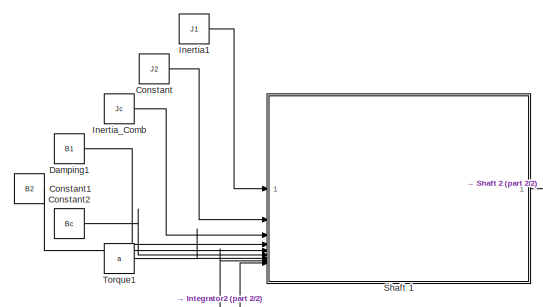
[diagram: root canvas - part 1/2, left side, full height]
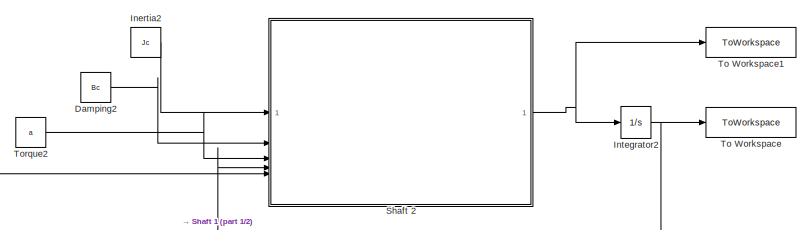
[diagram: root canvas - part 2/2, middle right region]
MODEL slx_19598f20d4ec
KIND model
CONFIG AbsTol = auto
CONFIG EnableMultiTasking = off
CONFIG FixedStep = auto
CONFIG MaxStep = auto
CONFIG MinStep = auto
CONFIG RelTol = 1e-3
CONFIG SampleTimeConstraint = Unconstrained
CONFIG SolverName = VariableStepAuto
CONFIG StartTime = 0.0
CONFIG StopTime = 10.0
BLOCK [Constant] Constant
  Value = J2
BLOCK [Constant] Constant1
  Value = B2
BLOCK [Constant] Constant2
  Value = Bc
BLOCK [Constant] Damping1
  Value = B1
BLOCK [Constant] Damping2
  Value = Bc
BLOCK [Constant] Inertia1
  Value = J1
BLOCK [Constant] Inertia2
  Value = Jc
BLOCK [Constant] Inertia_Comb
  Value = Jc
BLOCK [Integrator] Integrator2
  LimitOutput = on
  UpperSaturationLimit = 1000
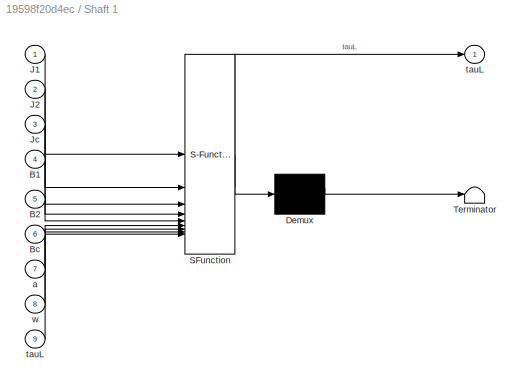
BLOCK [SubSystem] Shaft 1
  ErrorFcn = Stateflow.Translate.translate
  PermitHierarchicalResolution = ExplicitOnly
  SFBlockType = MATLAB Function
  TreatAsAtomicUnit = on
BLOCK [Demux] Shaft 1/ Demux 
  Outputs = 1
BLOCK [S-Function] Shaft 1/ SFunction 
  EnableBusSupport = on
  FunctionName = sf_sfun
  PortCounts = [9 2]
  SFcnIsStateOwnerBlock = off
  SFunctionDeploymentMode = off
  Tag = Stateflow S-Function 1
BLOCK [Terminator] Shaft 1/ Terminator 
BLOCK [Inport] Shaft 1/B1
  Port = 4
BLOCK [Inport] Shaft 1/B2
  Port = 5
BLOCK [Inport] Shaft 1/Bc
  Port = 6
BLOCK [Inport] Shaft 1/J1
BLOCK [Inport] Shaft 1/J2
  Port = 2
BLOCK [Inport] Shaft 1/Jc
  Port = 3
BLOCK [Inport] Shaft 1/a
  Port = 7
BLOCK [Outport] Shaft 1/tauL
BLOCK [Inport] Shaft 1/tauL 
  Port = 9
BLOCK [Inport] Shaft 1/w
  Port = 8
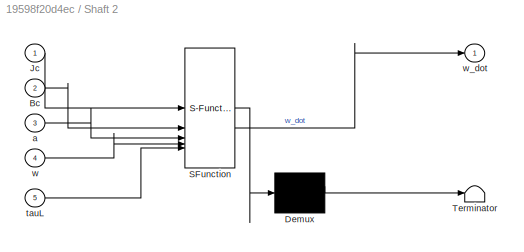
BLOCK [SubSystem] Shaft 2
  ErrorFcn = Stateflow.Translate.translate
  PermitHierarchicalResolution = ExplicitOnly
  SFBlockType = MATLAB Function
  TreatAsAtomicUnit = on
BLOCK [Demux] Shaft 2/ Demux 
  Outputs = 1
BLOCK [S-Function] Shaft 2/ SFunction 
  EnableBusSupport = on
  FunctionName = sf_sfun
  PortCounts = [5 2]
  SFcnIsStateOwnerBlock = off
  SFunctionDeploymentMode = off
  Tag = Stateflow S-Function 2
BLOCK [Terminator] Shaft 2/ Terminator 
BLOCK [Inport] Shaft 2/Bc
  Port = 2
BLOCK [Inport] Shaft 2/Jc
BLOCK [Inport] Shaft 2/a
  Port = 3
BLOCK [Inport] Shaft 2/tauL
  Port = 5
BLOCK [Inport] Shaft 2/w
  Port = 4
BLOCK [Outport] Shaft 2/w_dot
BLOCK [ToWorkspace] To Workspace
  FixptAsFi = on
  MaxDataPoints = inf
  SampleTime = -1
  SaveFormat = Timeseries
  VariableName = w
BLOCK [ToWorkspace] To Workspace1
  FixptAsFi = on
  MaxDataPoints = inf
  SampleTime = -1
  SaveFormat = Structure With Time
  VariableName = w_dot
BLOCK [Constant] Torque1
  Value = a
BLOCK [Constant] Torque2
  Value = a
LINE Constant1:1 -> Shaft 1:5
LINE Constant2:1 -> Shaft 1:6
LINE Constant:1 -> Shaft 1:2
LINE Damping1:1 -> Shaft 1:4
LINE Damping2:1 -> Shaft 2:2
LINE Inertia1:1 -> Shaft 1:1
LINE Inertia2:1 -> Shaft 2:1
LINE Inertia_Comb:1 -> Shaft 1:3
NET Integrator2:1 -> Shaft 1:8, Shaft 2:4, To Workspace:1
NET Shaft 1:1 -> Shaft 1:9, Shaft 2:5
NET Shaft 2:1 -> Integrator2:1, To Workspace1:1
LINE Torque1:1 -> Shaft 1:7
LINE Torque2:1 -> Shaft 2:3
note: NET lines group one-source signal fan-out (src -> all destinations, sorted); 1:1 wires keep LINE
CHART Shaft 1 states=1 transitions=1
  STATE_LABEL 'eML_blk_kernel()'
  STATE_LABEL 'SCRIPT:\nfunction tauL = fcn(J1, J2, Jc, B1, B2, Bc, a, w, tauL)\n\ntauL = ((1/Jc)*(J2*a + J2*tauL)) - ((1/Jc)*(B1*J2 - B2*J1)*w);\n\nend\n\n'
CHART Shaft 2 states=1 transitions=1
  STATE_LABEL 'eML_blk_kernel()'
  STATE_LABEL 'SCRIPT:\nfunction w_dot = fcn(Jc, Bc, a, w, tauL)\n\nw_dot = ((1/Jc)*(a - tauL)) - ((Bc/Jc)*w);\n\nend\n\n'
CHART  states=0 transitions=0
CHART  states=0 transitions=0
